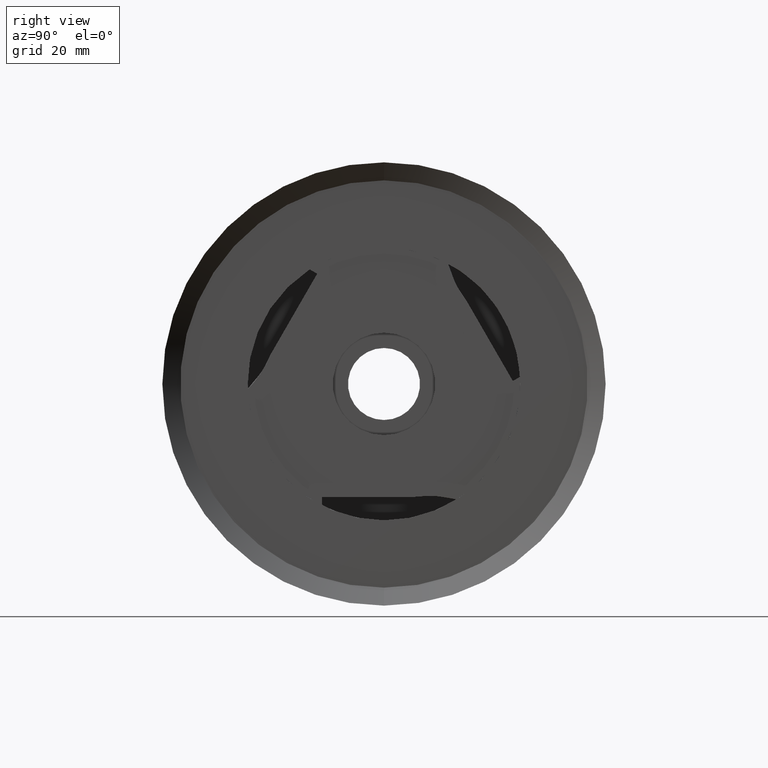
[diagram: clean part render]
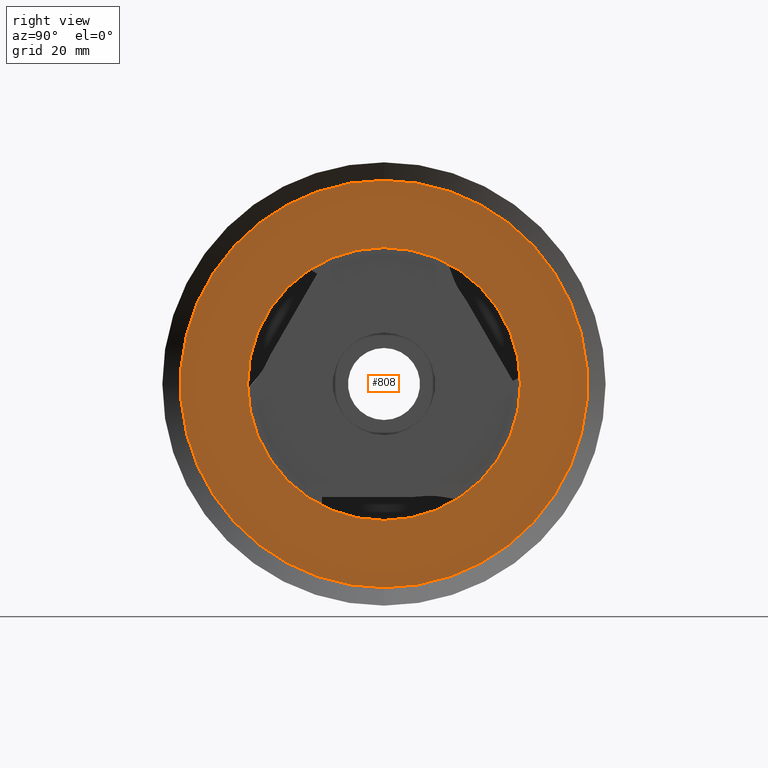
[diagram: same view with one face highlighted and labeled with its STEP entity id]
A machine part, right view. The second image highlights one B-rep face of the part: STEP entity #808.
In plain terms, the highlighted planar face has unit normal (1, 0, -0).
Its self-contained STEP definition (entity closure, byte-faithful):
#293 = DIRECTION ( 'NONE',  ( 0.0000000000000000000, 0.0000000000000000000, -1.000000000000000000 ) ) ;
#294 = DIRECTION ( 'NONE',  ( 1.000000000000000000, -0.0000000000000000000, -0.0000000000000000000 ) ) ;
#295 = CARTESIAN_POINT ( 'NONE',  ( 0.001996416423864777500, 0.0000000000000000000, 0.0000000000000000000 ) ) ;
#313 = DIRECTION ( 'NONE',  ( 0.0000000000000000000, 0.0000000000000000000, -1.000000000000000000 ) ) ;
#314 = DIRECTION ( 'NONE',  ( 1.000000000000000000, -0.0000000000000000000, -0.0000000000000000000 ) ) ;
#315 = CARTESIAN_POINT ( 'NONE',  ( 0.001996416423864777500, 0.0000000000000000000, 0.0000000000000000000 ) ) ;
#353 = DIRECTION ( 'NONE',  ( 0.0000000000000000000, 0.0000000000000000000, -1.000000000000000000 ) ) ;
#354 = DIRECTION ( 'NONE',  ( 1.000000000000000000, -0.0000000000000000000, -0.0000000000000000000 ) ) ;
#355 = CARTESIAN_POINT ( 'NONE',  ( 0.001996416423864777500, 0.0000000000000000000, 0.0000000000000000000 ) ) ;
#576 = AXIS2_PLACEMENT_3D ( 'NONE', #4704, #4703, #4702 ) ;
#725 = VERTEX_POINT ( 'NONE', #4762 ) ;
#808 = ADVANCED_FACE ( 'NONE', ( #2283, #2288 ), #4711, .T. ) ;
#1048 = EDGE_LOOP ( 'NONE', ( #4172, #4173 ) ) ;
#2247 = EDGE_LOOP ( 'NONE', ( #4170, #4171 ) ) ;
#2283 = FACE_OUTER_BOUND ( 'NONE', #2247, .T. ) ;
#2288 = FACE_BOUND ( 'NONE', #1048, .T. ) ;
#2389 = VERTEX_POINT ( 'NONE', #5187 ) ;
#2395 = VERTEX_POINT ( 'NONE', #5183 ) ;
#2396 = VERTEX_POINT ( 'NONE', #5182 ) ;
#2542 = AXIS2_PLACEMENT_3D ( 'NONE', #5010, #4997, #5009 ) ;
#2556 = AXIS2_PLACEMENT_3D ( 'NONE', #315, #314, #313 ) ;
#2569 = AXIS2_PLACEMENT_3D ( 'NONE', #295, #294, #293 ) ;
#2801 = AXIS2_PLACEMENT_3D ( 'NONE', #355, #354, #353 ) ;
#3010 = EDGE_CURVE ( 'NONE', #2396, #2395, #3953, .T. ) ;
#3117 = EDGE_CURVE ( 'NONE', #2389, #725, #4002, .T. ) ;
#3125 = EDGE_CURVE ( 'NONE', #725, #2389, #4012, .T. ) ;
#3132 = EDGE_CURVE ( 'NONE', #2395, #2396, #4022, .T. ) ;
#3953 = CIRCLE ( 'NONE', #2542, 36.75324417668876700 ) ;
#4002 = CIRCLE ( 'NONE', #2801, 24.62260150358730500 ) ;
#4012 = CIRCLE ( 'NONE', #2556, 24.62260150358730500 ) ;
#4022 = CIRCLE ( 'NONE', #2569, 36.75324417668876700 ) ;
#4170 = ORIENTED_EDGE ( 'NONE', *, *, #3010, .T. ) ;
#4171 = ORIENTED_EDGE ( 'NONE', *, *, #3132, .T. ) ;
#4172 = ORIENTED_EDGE ( 'NONE', *, *, #3125, .F. ) ;
#4173 = ORIENTED_EDGE ( 'NONE', *, *, #3117, .F. ) ;
#4702 = DIRECTION ( 'NONE',  ( -0.0000000000000000000, 0.0000000000000000000, -1.000000000000000000 ) ) ;
#4703 = DIRECTION ( 'NONE',  ( 1.000000000000000000, 0.0000000000000000000, -0.0000000000000000000 ) ) ;
#4704 = CARTESIAN_POINT ( 'NONE',  ( 0.001996416423864777500, 24.62260150358730500, 0.0000000000000000000 ) ) ;
#4711 = PLANE ( 'NONE',  #576 ) ;
#4762 = CARTESIAN_POINT ( 'NONE',  ( 0.001996416423864777500, 0.0000000000000000000, -24.62260150358730500 ) ) ;
#4997 = DIRECTION ( 'NONE',  ( 1.000000000000000000, -0.0000000000000000000, -0.0000000000000000000 ) ) ;
#5009 = DIRECTION ( 'NONE',  ( 0.0000000000000000000, 0.0000000000000000000, -1.000000000000000000 ) ) ;
#5010 = CARTESIAN_POINT ( 'NONE',  ( 0.001996416423864777500, 0.0000000000000000000, 0.0000000000000000000 ) ) ;
#5182 = CARTESIAN_POINT ( 'NONE',  ( 0.001996416423864777500, 0.0000000000000000000, -36.75324417668876700 ) ) ;
#5183 = CARTESIAN_POINT ( 'NONE',  ( 0.001996416423864777500, 4.699780740257855600E-015, 36.75324417668876700 ) ) ;
#5187 = CARTESIAN_POINT ( 'NONE',  ( 0.001996416423864777500, 3.015399011804900200E-015, 24.62260150358730500 ) ) ;